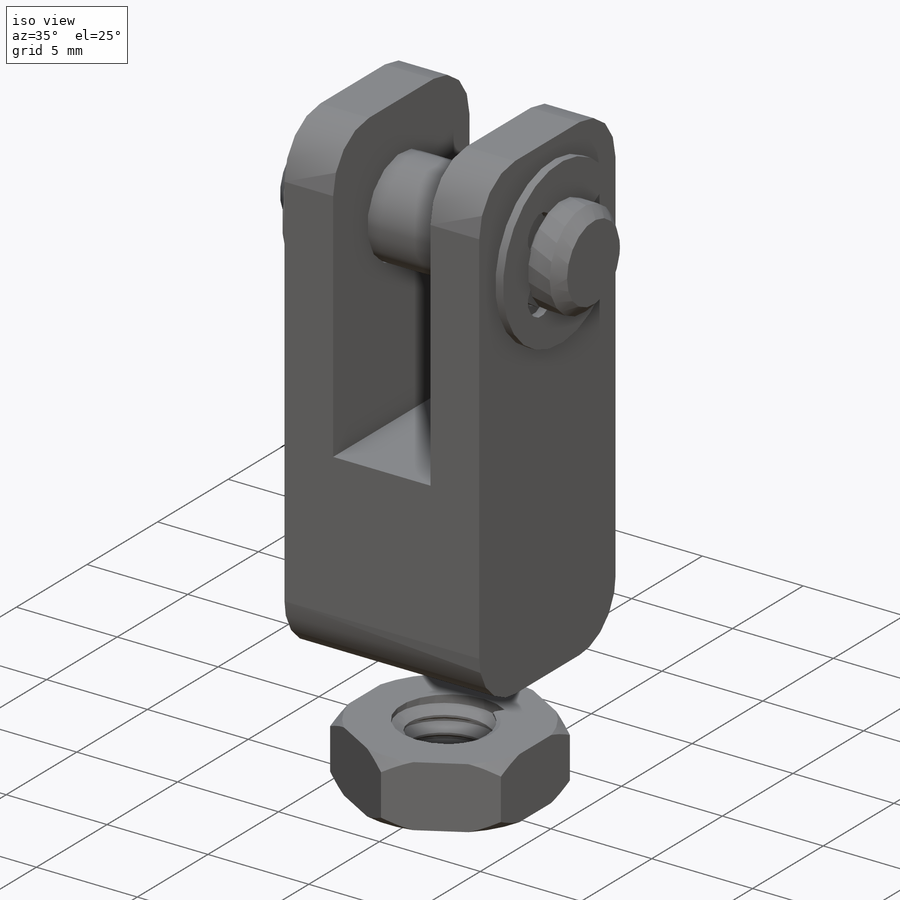
[diagram: iso view]
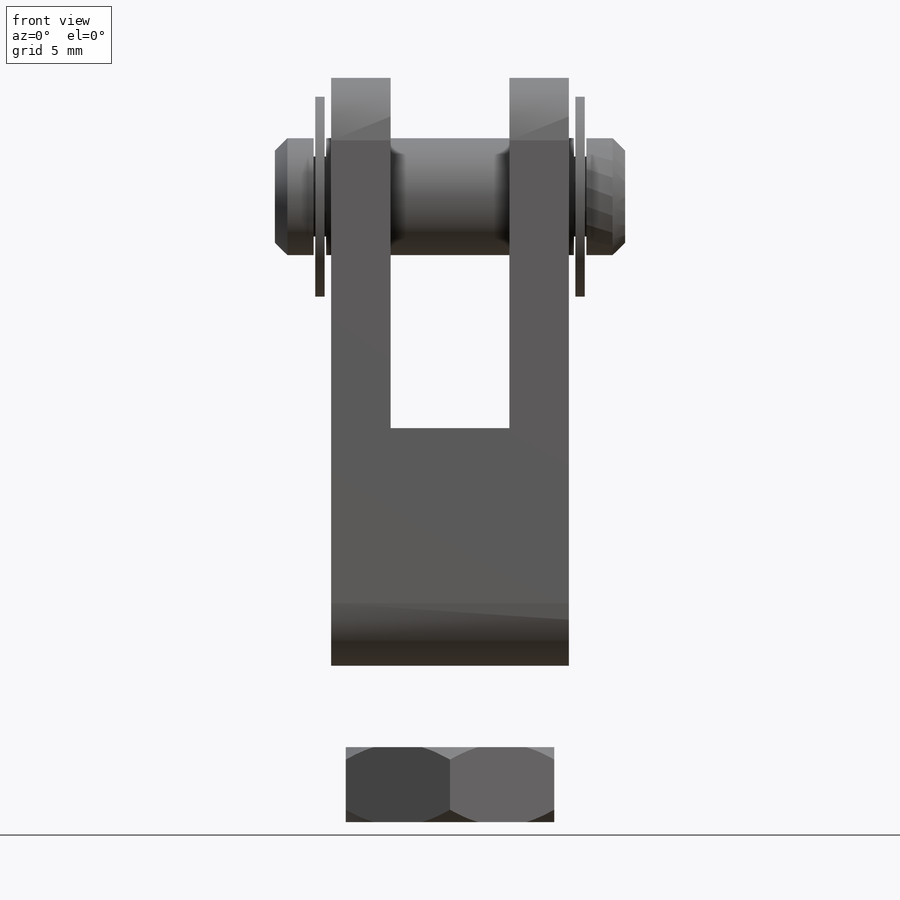
[diagram: front view]
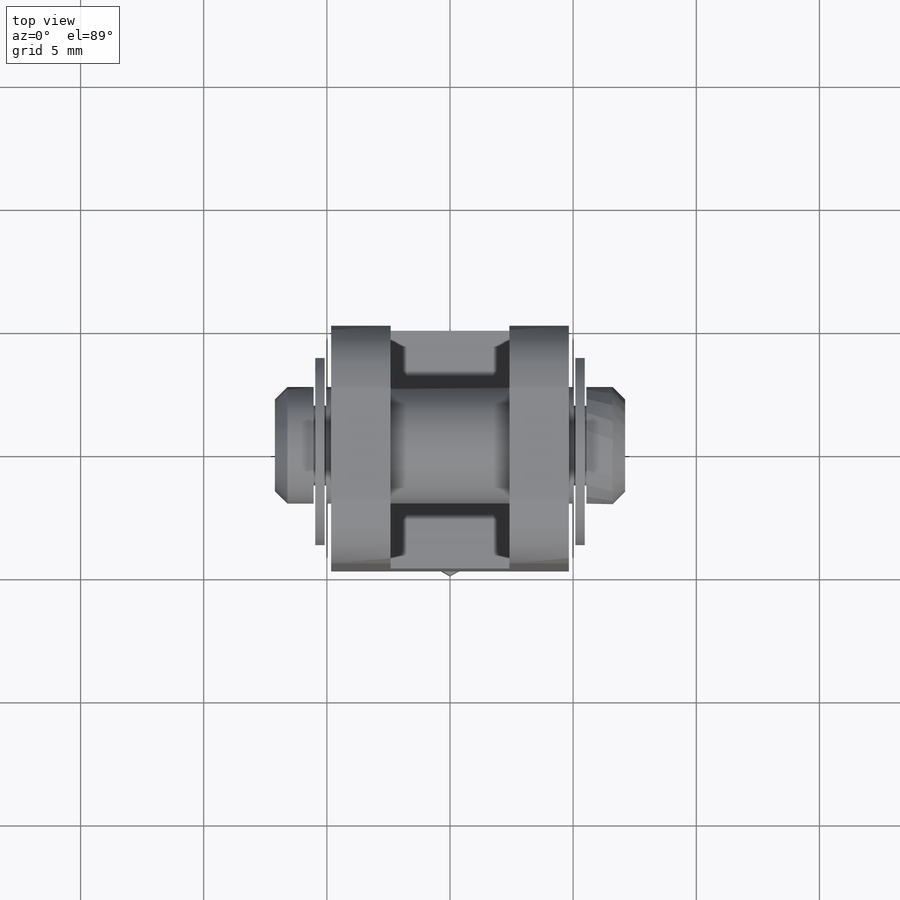
[diagram: top view]
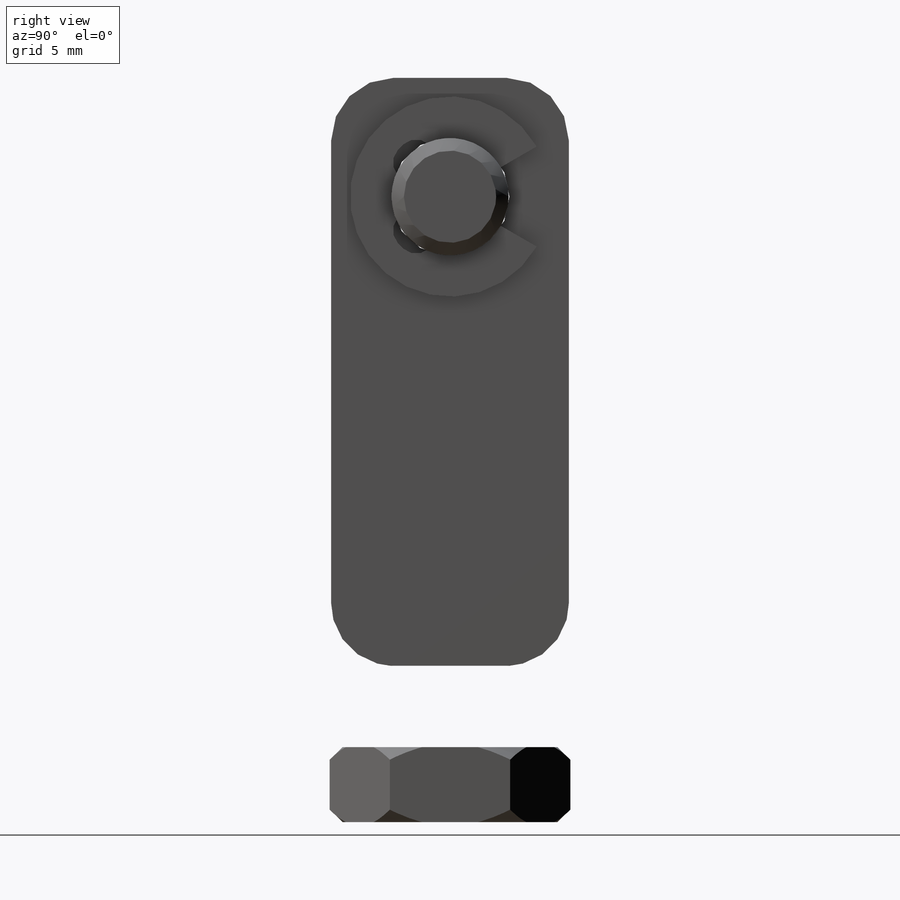
[diagram: right view]
SOLIDWORKS PART (.sldprt)
format: sldprt  version: not decoded by parser v0  size: 617,984 bytes
history: native  units: mm
features: sketch x15, cut_extrude x5, extrude x3, plane x2, helix x2, sweep x2, material x1, revolve x1, mirror x1, fillet x1, cut_revolve x1 (+14 scaffold rows collapsed)
feature tree (48):
  scaffold x14  (default folders/planes/origin — collapsed)
  material  "Material <not specified>"
  sketch  "Sketch1"  dims[D1=9.652mm D2=4.826mm D3=14.224mm D4=23.876mm]
  extrude  "Extrude1"  Depth=9.652mm
  sketch  "Sketch2"  dims[D2=4.826mm D1=19.05mm]
  cut_extrude  "Cut-Extrude1"  [1 undecoded]
  sketch  "Sketch18"  dims[c1.D1=~1.885695mm c2.D1=45.0deg c2.D2=0.2032mm c2.D3=0.2032mm c2.D4=0.762mm c2.D5=0.508mm c2.D6=~2.38125mm c2.D7=14.224mm c2.D8=0.508mm]
  revolve  "Revolve1"  Angle=360deg
  plane  "Plane2"
  sketch  "Sketch19"  dims[c1.D2=4.064mm c1.D6=0.762mm c1.D1=~2.211333mm c2.D1=60.0deg c2.D3=~5.352167mm c3.D3=25.0deg c3.D4=1.214mm c4.D4=25.0deg c4.D5=~1.87325mm c5.D5=45.0deg]
  extrude  "Extrude6"  Depth=0.381mm
  mirror  "Mirror1"
  fillet  "Fillet1"  Radius=2.54mm
  sketch  "Sketch3"  dims[D1=~4.80314mm]
  cut_extrude  "Cut-Extrude2"  Depth=2.54mm
  sketch  "Sketch4"  dims[D1=~4.65074mm]
  helix  "Helix/Spiral1"  Pitch=8.382mm
  sketch  "Sketch5"  dims[c1.D1=~0.197851mm c2.D1=60.0deg c2.D2=~0.099219mm c2.D3=~0.396875mm]
  sweep  "Sweep1"
  sketch  "Sketch6"
  cut_extrude  "Cut-Extrude3"  [1 undecoded]
  sketch  "Sketch7"  dims[D1=6.35mm]
  plane  "Plane1"
  sketch  "Sketch12"  dims[D1=~8.46582mm]
  extrude  "Extrude5"  Depth=3.048mm
  sketch  "Sketch13"  dims[D1=~4.80314mm]
  cut_extrude  "Cut-Extrude5"  [1 undecoded]
  sketch  "Sketch14"  dims[D1=0.508mm]
  cut_revolve  "Cut-Revolve1"  Angle=360deg
  sketch  "Sketch15"
  helix  "Helix/Spiral2"  Pitch=3.302mm
  sketch  "Sketch16"  dims[c1.D1=~0.433646mm c2.D1=60.0deg c2.D2=~0.099219mm c2.D3=~0.396875mm]
  sweep  "Sweep2"
  sketch  "Sketch17"
  cut_extrude  "Cut-Extrude6"  Depth=23.368mm
decode coverage: 22 of 31 modeling features carry decoded parameters
note: ~ marks probable driven/reference dimensions
note: 3 parameter values undecoded
summary: no parameter record found for 3 features
note: suppression state not decoded; provenance and decode notes live in map.json
